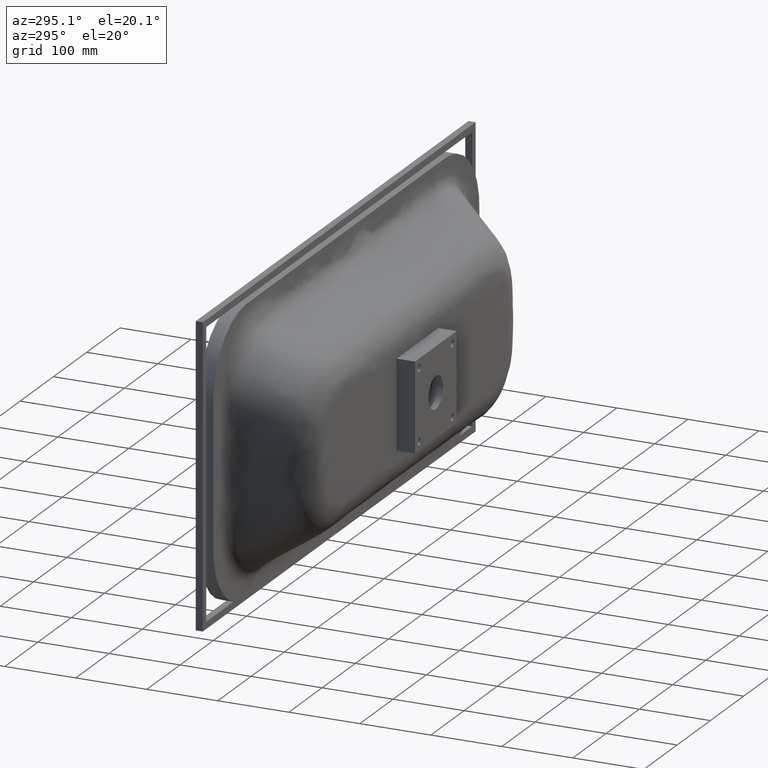
[diagram: clean part render]
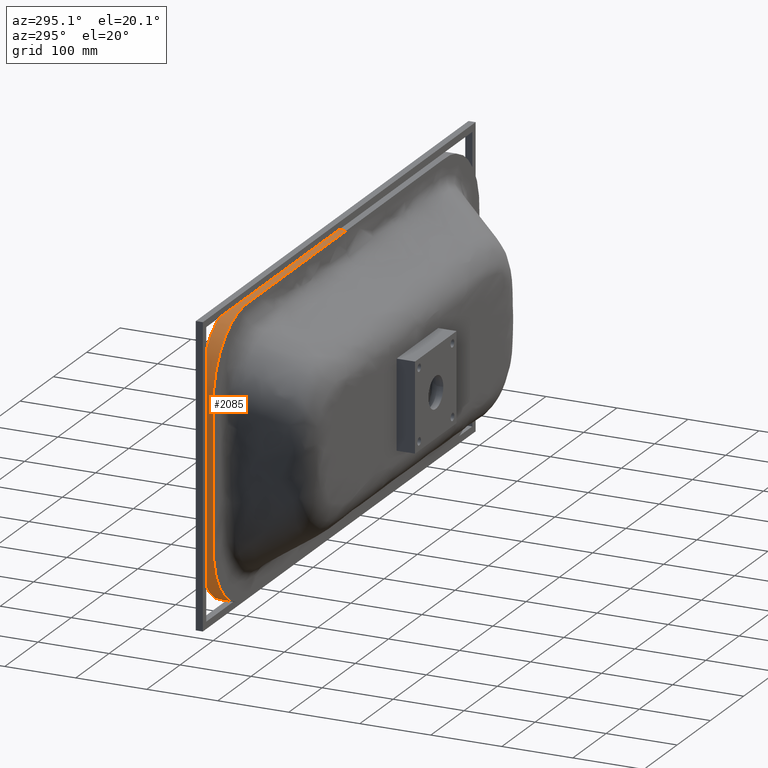
[diagram: same view with one face highlighted and labeled with its STEP entity id]
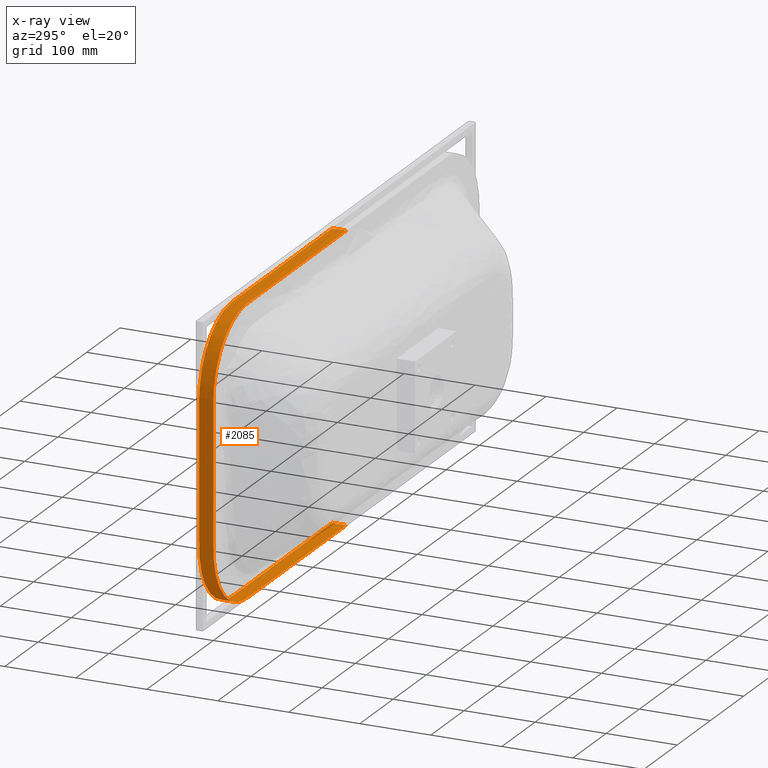
[diagram: x-ray of the same camera — body ghosted, the highlighted face saturated]
A machine part, auxiliary view. The second image highlights one B-rep face of the part: STEP entity #2085.
The next image is the same camera in x-ray: the body ghosted, the highlighted face saturated — about 1% of this face is hidden behind the body in this view.
In plain terms, the highlighted face is a freeform B-spline surface patch.
Its self-contained STEP definition (entity closure, byte-faithful):
#3 = CARTESIAN_POINT ( 'NONE',  ( -6.801850749305060600E-013, 99.99999999999978700, -200.0000000000000000 ) ) ;
#65 = CARTESIAN_POINT ( 'NONE',  ( 371.5384813318390800, 113.3333333333344900, 171.5384813318371500 ) ) ;
#87 = CARTESIAN_POINT ( 'NONE',  ( -308.8402994666680600, 100.0000000000006300, -199.9999999999988900 ) ) ;
#95 = CARTESIAN_POINT ( 'NONE',  ( -350.4493998604106100, 106.6666666666674100, 187.6607435241647000 ) ) ;
#118 = CARTESIAN_POINT ( 'NONE',  ( 400.0000000000002300, 113.3333333333344900, 1.137886081655400100E-011 ) ) ;
#177 = CARTESIAN_POINT ( 'NONE',  ( 387.6607435241642200, 120.0000000000023300, 150.4493998604089000 ) ) ;
#223 = CARTESIAN_POINT ( 'NONE',  ( 134.9999999999993200, 120.0000000000013400, -200.0000000000003400 ) ) ;
#237 = CARTESIAN_POINT ( 'NONE',  ( -6.775829897165408500E-013, 120.0000000000010500, -200.0000000000000000 ) ) ;
#245 = CARTESIAN_POINT ( 'NONE',  ( 134.9999999999990900, 99.99999999999941700, -200.0000000000001100 ) ) ;
#256 = B_SPLINE_SURFACE_WITH_KNOTS ( 'NONE', 3, 3, ( 
 ( #237, #351, #526, #4260, #4912, #6376, #4004, #6871, #7536, #7643, #712, #4247, #4257, #8758, #1219, #8445, #8534, #8565, #1438, #1393, #3915, #7467, #8316, #4160, #1282, #9540, #9523, #1310, #628, #3954, #7111, #177, #639, #8573, #7719, #8082, #8083, #6855, #8906, #9609, #3791, #1589, #1229, #1309, #1253, #223, #3604, #3941, #9253, #4122, #4018 ),
 ( #6830, #4081, #1264, #4043, #4083, #3984, #6385, #10026, #7487, #6795, #7211, #7183, #6491, #10008, #9171, #9147, #9137, #9135, #9117, #1252, #9082, #9008, #1347, #9184, #9248, #9564, #9665, #9707, #9469, #9439, #65, #9786, #4093, #4005, #3769, #118, #9391, #4582, #9748, #9787, #9173, #1567, #8995, #7851, #7129, #8198, #7980, #7325, #6807, #7336, #4584 ),
 ( #9582, #9342, #932, #9279, #1402, #6488, #7703, #8594, #8102, #8115, #6938, #943, #7607, #4599, #8236, #1201, #9328, #7510, #1339, #1220, #857, #95, #649, #9746, #3891, #6683, #671, #6752, #3835, #6514, #6439, #7197, #7097, #7088, #7384, #7585, #8059, #7795, #4095, #7073, #8678, #7010, #9718, #8662, #4183, #1466, #3719, #9691, #7035, #6527, #7819 ),
 ( #8968, #9352, #6994, #7675, #6791, #7072, #9105, #87, #7059, #8693, #7113, #6693, #6524, #8460, #448, #7328, #9811, #7561, #1588, #8996, #1281, #9973, #9278, #6819, #7158, #9442, #3682, #3981, #3930, #8005, #662, #1436, #8784, #7254, #7239, #7571, #7349, #8925, #1133, #581, #1142, #7360, #7362, #6777, #4016, #245, #7172, #6974, #441, #437, #3 ) ),
 .UNSPECIFIED., .F., .T., .F.,
 ( 4, 4 ),
 ( 4, 1, 1, 1, 1, 2, 1, 1, 1, 1, 1, 2, 1, 2, 1, 1, 1, 1, 1, 2, 1, 2, 1, 1, 1, 1, 1, 2, 1, 2, 1, 1, 1, 1, 1, 2, 1, 1, 1, 1, 4 ),
 ( 0.0000000000000000000, 1.000000000000000000 ),
 ( 0.0000000000000000000, 0.006706903432371902300, 0.01341380686474358300, 0.02012071029711548500, 0.02682761372948738700, 0.1341380686474368300, 0.1459962756146732100, 0.1578544825819094800, 0.1697126895491458700, 0.1815708965163822500, 0.1934291034836185300, 0.2052873104508549100, 0.2499999999997610200, 0.2947126895491456500, 0.3065708965163819200, 0.3184291034836181900, 0.3302873104508545800, 0.3421455174180908500, 0.3540037243853271200, 0.3658619313525634000, 0.5000000000000000000, 0.6341380686474370500, 0.6459962756146733200, 0.6578544825819095900, 0.6697126895491458700, 0.6815708965163821400, 0.6934291034836184100, 0.7052873104508546900, 0.7499999999999830100, 0.7947126895491455300, 0.8065708965163818100, 0.8184291034836180800, 0.8302873104508543500, 0.8421455174180906300, 0.8540037243853270100, 0.8658619313525632900, 0.9731723862705126100, 0.9798792897028845200, 0.9865861931352563100, 0.9932930965676282100, 1.000000000000000000 ),
 .UNSPECIFIED. ) ;
#269 = CARTESIAN_POINT ( 'NONE',  ( 2.210455197844870900E-013, 100.0000000000000000, 200.0000000000000300 ) ) ;
#351 = CARTESIAN_POINT ( 'NONE',  ( -5.000000000000732700, 120.0000000000010400, -199.9999999999999700 ) ) ;
#408 = CARTESIAN_POINT ( 'NONE',  ( -6.938893903907228400E-013, 120.0000000000012900, 200.0000000000000000 ) ) ;
#437 = CARTESIAN_POINT ( 'NONE',  ( 4.999999999999281500, 99.99999999999977300, -200.0000000000000000 ) ) ;
#441 = CARTESIAN_POINT ( 'NONE',  ( 14.99999999999927900, 99.99999999999971600, -199.9999999999999400 ) ) ;
#448 = CARTESIAN_POINT ( 'NONE',  ( -400.0000000000009100, 100.0000000000009500, -66.66666666684379500 ) ) ;
#526 = CARTESIAN_POINT ( 'NONE',  ( -15.00000000000067900, 120.0000000000009900, -199.9999999999999400 ) ) ;
#581 = CARTESIAN_POINT ( 'NONE',  ( 387.6607435241632500, 99.99999999999876400, -150.4493998604117200 ) ) ;
#628 = CARTESIAN_POINT ( 'NONE',  ( 326.2865120157429100, 120.0000000000021500, 197.6520662592141700 ) ) ;
#639 = CARTESIAN_POINT ( 'NONE',  ( 397.6520662592157600, 120.0000000000023400, 126.2865120157406300 ) ) ;
#649 = CARTESIAN_POINT ( 'NONE',  ( -326.2865120157422900, 106.6666666666673400, 197.6520662592164400 ) ) ;
#662 = CARTESIAN_POINT ( 'NONE',  ( 371.5384813318390200, 99.99999999999894800, 171.5384813318371800 ) ) ;
#671 = CARTESIAN_POINT ( 'NONE',  ( 200.0000000000001700, 106.6666666666668600, 199.9999999999996600 ) ) ;
#712 = CARTESIAN_POINT ( 'NONE',  ( -371.5384813318397100, 120.0000000000000000, -171.5384813318372900 ) ) ;
#857 = CARTESIAN_POINT ( 'NONE',  ( -371.5384813318385100, 106.6666666666673700, 171.5384813318397300 ) ) ;
#932 = CARTESIAN_POINT ( 'NONE',  ( -15.00000000000066800, 106.6666666666669000, -200.0000000000000300 ) ) ;
#943 = CARTESIAN_POINT ( 'NONE',  ( -387.6607435241649000, 106.6666666666672700, -150.4493998604091300 ) ) ;
#1133 = CARTESIAN_POINT ( 'NONE',  ( 397.6520662592150800, 99.99999999999867800, -126.2865120157435100 ) ) ;
#1142 = CARTESIAN_POINT ( 'NONE',  ( 371.5384813318378300, 99.99999999999873500, -171.5384813318397900 ) ) ;
#1201 = CARTESIAN_POINT ( 'NONE',  ( -400.0000000000005700, 106.6666666666673500, -1.772693103418987400E-010 ) ) ;
#1219 = CARTESIAN_POINT ( 'NONE',  ( -400.0000000000008000, 119.9999999999999600, -66.66666666684393800 ) ) ;
#1220 = CARTESIAN_POINT ( 'NONE',  ( -387.6607435241640500, 106.6666666666674200, 150.4493998604116600 ) ) ;
#1229 = CARTESIAN_POINT ( 'NONE',  ( 326.2865120157414900, 120.0000000000018900, -197.6520662592164700 ) ) ;
#1252 = CARTESIAN_POINT ( 'NONE',  ( -387.6607435241640500, 113.3333333333338400, 150.4493998604116600 ) ) ;
#1253 = CARTESIAN_POINT ( 'NONE',  ( 219.9999999999991500, 120.0000000000017800, -200.0000000000004300 ) ) ;
#1264 = CARTESIAN_POINT ( 'NONE',  ( -15.00000000000067300, 113.3333333333339400, -199.9999999999999700 ) ) ;
#1281 = CARTESIAN_POINT ( 'NONE',  ( -371.5384813318385700, 100.0000000000009800, 171.5384813318397100 ) ) ;
#1282 = CARTESIAN_POINT ( 'NONE',  ( -200.0000000000005400, 120.0000000000009900, 200.0000000000007700 ) ) ;
#1309 = CARTESIAN_POINT ( 'NONE',  ( 308.8402994666660100, 120.0000000000018800, -200.0000000000009900 ) ) ;
#1310 = CARTESIAN_POINT ( 'NONE',  ( 308.8402994666673700, 120.0000000000021000, 199.9999999999987800 ) ) ;
#1339 = CARTESIAN_POINT ( 'NONE',  ( -397.6520662592157600, 106.6666666666674000, 126.2865120157434000 ) ) ;
#1347 = CARTESIAN_POINT ( 'NONE',  ( -326.2865120157422900, 113.3333333333339300, 197.6520662592164700 ) ) ;
#1393 = CARTESIAN_POINT ( 'NONE',  ( -387.6607435241640500, 120.0000000000001700, 150.4493998604116600 ) ) ;
#1394 = VERTEX_POINT ( 'NONE', #408 ) ;
#1402 = CARTESIAN_POINT ( 'NONE',  ( -45.00000000000070300, 106.6666666666669100, -200.0000000000000300 ) ) ;
#1436 = CARTESIAN_POINT ( 'NONE',  ( 387.6607435241641600, 99.99999999999889200, 150.4493998604089900 ) ) ;
#1438 = CARTESIAN_POINT ( 'NONE',  ( -397.6520662592155900, 120.0000000000001100, 126.2865120157434000 ) ) ;
#1466 = CARTESIAN_POINT ( 'NONE',  ( 134.9999999999991800, 106.6666666666667400, -200.0000000000002000 ) ) ;
#1567 = CARTESIAN_POINT ( 'NONE',  ( 350.4493998604098700, 113.3333333333343400, -187.6607435241647900 ) ) ;
#1588 = CARTESIAN_POINT ( 'NONE',  ( -397.6520662592158100, 100.0000000000010700, 126.2865120157434000 ) ) ;
#1589 = CARTESIAN_POINT ( 'NONE',  ( 350.4493998604099300, 120.0000000000020500, -187.6607435241647600 ) ) ;
#1780 = ORIENTED_EDGE ( 'NONE', *, *, #2818, .F. ) ;
#1786 = VERTEX_POINT ( 'NONE', #269 ) ;
#2085 = ADVANCED_FACE ( 'NONE', ( #7930 ), #256, .T. ) ;
#2818 = EDGE_CURVE ( 'NONE', #1394, #1786, #6375, .T. ) ;
#2971 = EDGE_CURVE ( 'NONE', #4220, #1786, #3893, .T. ) ;
#3135 = B_SPLINE_CURVE_WITH_KNOTS ( 'NONE', 3,
 ( #8260, #3889, #4710, #4120, #3923, #8453, #8394, #8493, #8637, #8638, #8611, #8622, #8603, #8587, #9592, #9594, #9603, #9805, #9796, #5112, #8934, #9295, #9577, #9570, #9821, #9819, #10133 ),
 .UNSPECIFIED., .F., .F.,
 ( 4, 1, 1, 1, 1, 2, 1, 1, 1, 1, 1, 2, 1, 2, 1, 1, 1, 1, 1, 2, 4 ),
 ( 0.0000000000000000000, 0.006706903432371902300, 0.01341380686474358300, 0.02012071029711548500, 0.02682761372948738700, 0.1341380686474368300, 0.1459962756146732100, 0.1578544825819094800, 0.1697126895491458700, 0.1815708965163822500, 0.1934291034836185300, 0.2052873104508549100, 0.2499999999997610200, 0.2947126895491456500, 0.3065708965163819200, 0.3184291034836181900, 0.3302873104508545800, 0.3421455174180908500, 0.3540037243853271200, 0.3658619313525634000, 0.5000000000000000000 ),
 .UNSPECIFIED. ) ;
#3604 = CARTESIAN_POINT ( 'NONE',  ( 44.99999999999938200, 120.0000000000011200, -200.0000000000001100 ) ) ;
#3630 = EDGE_CURVE ( 'NONE', #3744, #1394, #3135, .T. ) ;
#3682 = CARTESIAN_POINT ( 'NONE',  ( 200.0000000000003100, 99.99999999999934600, 199.9999999999996600 ) ) ;
#3719 = CARTESIAN_POINT ( 'NONE',  ( 44.99999999999931800, 106.6666666666668300, -200.0000000000000000 ) ) ;
#3744 = VERTEX_POINT ( 'NONE', #9604 ) ;
#3769 = CARTESIAN_POINT ( 'NONE',  ( 400.0000000000002800, 113.3333333333345400, 66.66666666667795500 ) ) ;
#3787 = CARTESIAN_POINT ( 'NONE',  ( 2.210455197844870900E-013, 100.0000000000000000, 200.0000000000000300 ) ) ;
#3791 = CARTESIAN_POINT ( 'NONE',  ( 371.5384813318378300, 120.0000000000020500, -171.5384813318397300 ) ) ;
#3835 = CARTESIAN_POINT ( 'NONE',  ( 326.2865120157428600, 106.6666666666667700, 197.6520662592142200 ) ) ;
#3889 = CARTESIAN_POINT ( 'NONE',  ( -5.000000000000732700, 120.0000000000010400, -199.9999999999999700 ) ) ;
#3891 = CARTESIAN_POINT ( 'NONE',  ( -200.0000000000005400, 106.6666666666674400, 200.0000000000006800 ) ) ;
#3893 = B_SPLINE_CURVE_WITH_KNOTS ( 'NONE', 3,
 ( #7152, #7122, #7166, #7174, #7206, #7208, #7217, #7232, #7234, #7357, #7364, #7394, #7400, #7415, #7429, #7431, #7448, #7461, #7462, #7478, #7494, #7495, #7513, #7531, #7532, #7570, #7581 ),
 .UNSPECIFIED., .F., .F.,
 ( 4, 1, 1, 1, 1, 2, 1, 1, 1, 1, 1, 2, 1, 2, 1, 1, 1, 1, 1, 2, 4 ),
 ( 0.0000000000000000000, 0.006706903432371904900, 0.01341380686474358800, 0.02012071029711549500, 0.02682761372948739800, 0.1341380686474368800, 0.1459962756146732700, 0.1578544825819095700, 0.1697126895491459500, 0.1815708965163823400, 0.1934291034836186100, 0.2052873104508549900, 0.2499999999997611400, 0.2947126895491457600, 0.3065708965163820300, 0.3184291034836183600, 0.3302873104508547400, 0.3421455174180910200, 0.3540037243853272900, 0.3658619313525635600, 0.5000000000000002200 ),
 .UNSPECIFIED. ) ;
#3915 = CARTESIAN_POINT ( 'NONE',  ( -371.5384813318384500, 120.0000000000002000, 171.5384813318397300 ) ) ;
#3923 = CARTESIAN_POINT ( 'NONE',  ( -45.00000000000069600, 120.0000000000009100, -199.9999999999998600 ) ) ;
#3930 = CARTESIAN_POINT ( 'NONE',  ( 326.2865120157428600, 99.99999999999906200, 197.6520662592142500 ) ) ;
#3941 = CARTESIAN_POINT ( 'NONE',  ( 29.99999999999930400, 120.0000000000010900, -200.0000000000001100 ) ) ;
#3954 = CARTESIAN_POINT ( 'NONE',  ( 350.4493998604112300, 120.0000000000022600, 187.6607435241623400 ) ) ;
#3981 = CARTESIAN_POINT ( 'NONE',  ( 308.8402994666673200, 99.99999999999914700, 199.9999999999987800 ) ) ;
#3984 = CARTESIAN_POINT ( 'NONE',  ( -135.0000000000011100, 113.3333333333338300, -199.9999999999998000 ) ) ;
#4004 = CARTESIAN_POINT ( 'NONE',  ( -220.0000000000015300, 120.0000000000004700, -199.9999999999996300 ) ) ;
#4005 = CARTESIAN_POINT ( 'NONE',  ( 400.0000000000003400, 113.3333333333344800, 108.8402994666651300 ) ) ;
#4016 = CARTESIAN_POINT ( 'NONE',  ( 219.9999999999989500, 99.99999999999926100, -200.0000000000008500 ) ) ;
#4018 = CARTESIAN_POINT ( 'NONE',  ( -6.775829897165408500E-013, 120.0000000000010500, -200.0000000000000000 ) ) ;
#4043 = CARTESIAN_POINT ( 'NONE',  ( -30.00000000000068200, 113.3333333333339300, -199.9999999999999700 ) ) ;
#4081 = CARTESIAN_POINT ( 'NONE',  ( -5.000000000000730100, 113.3333333333339500, -200.0000000000000000 ) ) ;
#4083 = CARTESIAN_POINT ( 'NONE',  ( -45.00000000000069600, 113.3333333333339100, -199.9999999999999100 ) ) ;
#4093 = CARTESIAN_POINT ( 'NONE',  ( 397.6520662592157600, 113.3333333333345100, 126.2865120157406300 ) ) ;
#4095 = CARTESIAN_POINT ( 'NONE',  ( 397.6520662592150800, 106.6666666666665000, -126.2865120157435100 ) ) ;
#4120 = CARTESIAN_POINT ( 'NONE',  ( -30.00000000000068600, 120.0000000000009500, -199.9999999999998900 ) ) ;
#4122 = CARTESIAN_POINT ( 'NONE',  ( 4.999999999999293900, 120.0000000000010700, -200.0000000000000300 ) ) ;
#4160 = CARTESIAN_POINT ( 'NONE',  ( -308.8402994666668100, 120.0000000000004000, 200.0000000000009400 ) ) ;
#4183 = CARTESIAN_POINT ( 'NONE',  ( 219.9999999999990100, 106.6666666666667900, -200.0000000000007100 ) ) ;
#4220 = VERTEX_POINT ( 'NONE', #9271 ) ;
#4247 = CARTESIAN_POINT ( 'NONE',  ( -387.6607435241649000, 120.0000000000000300, -150.4493998604091000 ) ) ;
#4257 = CARTESIAN_POINT ( 'NONE',  ( -397.6520662592165500, 119.9999999999999400, -126.2865120157407800 ) ) ;
#4260 = CARTESIAN_POINT ( 'NONE',  ( -30.00000000000068600, 120.0000000000009500, -199.9999999999998900 ) ) ;
#4582 = CARTESIAN_POINT ( 'NONE',  ( 399.9999999999996600, 113.3333333333343900, -108.8402994666680100 ) ) ;
#4584 = CARTESIAN_POINT ( 'NONE',  ( -6.784503514545292500E-013, 113.3333333333339500, -200.0000000000000000 ) ) ;
#4599 = CARTESIAN_POINT ( 'NONE',  ( -400.0000000000010800, 106.6666666666672500, -108.8402994666652600 ) ) ;
#4710 = CARTESIAN_POINT ( 'NONE',  ( -15.00000000000067900, 120.0000000000009900, -199.9999999999999400 ) ) ;
#4811 = ORIENTED_EDGE ( 'NONE', *, *, #9385, .T. ) ;
#4912 = CARTESIAN_POINT ( 'NONE',  ( -45.00000000000069600, 120.0000000000009100, -199.9999999999998600 ) ) ;
#5112 = CARTESIAN_POINT ( 'NONE',  ( -387.6607435241640500, 120.0000000000001700, 150.4493998604116600 ) ) ;
#5511 = CARTESIAN_POINT ( 'NONE',  ( -4.371503159461553900E-013, 106.6666666666671100, 200.0000000000000600 ) ) ;
#6218 = CARTESIAN_POINT ( 'NONE',  ( -6.938893903907228400E-013, 120.0000000000012900, 200.0000000000000000 ) ) ;
#6296 = CARTESIAN_POINT ( 'NONE',  ( -5.759281940242999600E-013, 113.3333333333342200, 200.0000000000000600 ) ) ;
#6375 = B_SPLINE_CURVE_WITH_KNOTS ( 'NONE', 3,
 ( #6218, #6296, #5511, #3787 ),
 .UNSPECIFIED., .F., .F.,
 ( 4, 4 ),
 ( 0.0000000000000000000, 1.000000000000000000 ),
 .UNSPECIFIED. ) ;
#6376 = CARTESIAN_POINT ( 'NONE',  ( -135.0000000000010500, 120.0000000000006700, -199.9999999999996300 ) ) ;
#6385 = CARTESIAN_POINT ( 'NONE',  ( -220.0000000000018200, 113.3333333333337700, -199.9999999999994900 ) ) ;
#6439 = CARTESIAN_POINT ( 'NONE',  ( 371.5384813318390800, 106.6666666666667300, 171.5384813318371500 ) ) ;
#6488 = CARTESIAN_POINT ( 'NONE',  ( -135.0000000000011900, 106.6666666666670000, -199.9999999999999400 ) ) ;
#6491 = CARTESIAN_POINT ( 'NONE',  ( -397.6520662592165500, 113.3333333333336100, -126.2865120157407800 ) ) ;
#6514 = CARTESIAN_POINT ( 'NONE',  ( 350.4493998604112300, 106.6666666666667900, 187.6607435241623100 ) ) ;
#6524 = CARTESIAN_POINT ( 'NONE',  ( -397.6520662592165000, 100.0000000000009200, -126.2865120157407500 ) ) ;
#6527 = CARTESIAN_POINT ( 'NONE',  ( 4.999999999999285000, 106.6666666666668700, -200.0000000000000300 ) ) ;
#6683 = CARTESIAN_POINT ( 'NONE',  ( 5.088522196199331000E-015, 106.6666666666670600, 199.9999999999998900 ) ) ;
#6693 = CARTESIAN_POINT ( 'NONE',  ( -387.6607435241649000, 100.0000000000009400, -150.4493998604091300 ) ) ;
#6752 = CARTESIAN_POINT ( 'NONE',  ( 308.8402994666673200, 106.6666666666668100, 199.9999999999987800 ) ) ;
#6777 = CARTESIAN_POINT ( 'NONE',  ( 308.8402994666659000, 99.99999999999890600, -200.0000000000009900 ) ) ;
#6791 = CARTESIAN_POINT ( 'NONE',  ( -45.00000000000070300, 99.99999999999988600, -200.0000000000001100 ) ) ;
#6795 = CARTESIAN_POINT ( 'NONE',  ( -350.4493998604119700, 113.3333333333336700, -187.6607435241624000 ) ) ;
#6807 = CARTESIAN_POINT ( 'NONE',  ( 14.99999999999930500, 113.3333333333339500, -200.0000000000000300 ) ) ;
#6819 = CARTESIAN_POINT ( 'NONE',  ( -308.8402994666668100, 100.0000000000008500, 200.0000000000009100 ) ) ;
#6830 = CARTESIAN_POINT ( 'NONE',  ( -6.784503514545292500E-013, 113.3333333333339500, -200.0000000000000000 ) ) ;
#6855 = CARTESIAN_POINT ( 'NONE',  ( 399.9999999999996600, 120.0000000000022000, -108.8402994666680100 ) ) ;
#6871 = CARTESIAN_POINT ( 'NONE',  ( -308.8402994666680000, 120.0000000000001700, -199.9999999999988900 ) ) ;
#6938 = CARTESIAN_POINT ( 'NONE',  ( -371.5384813318397600, 106.6666666666671700, -171.5384813318372300 ) ) ;
#6974 = CARTESIAN_POINT ( 'NONE',  ( 29.99999999999923600, 99.99999999999968700, -199.9999999999999100 ) ) ;
#6994 = CARTESIAN_POINT ( 'NONE',  ( -15.00000000000066300, 99.99999999999981500, -200.0000000000000600 ) ) ;
#7010 = CARTESIAN_POINT ( 'NONE',  ( 350.4493998604098100, 106.6666666666665700, -187.6607435241648100 ) ) ;
#7035 = CARTESIAN_POINT ( 'NONE',  ( 14.99999999999929100, 106.6666666666668400, -199.9999999999999700 ) ) ;
#7059 = CARTESIAN_POINT ( 'NONE',  ( -326.2865120157435400, 100.0000000000006400, -197.6520662592143400 ) ) ;
#7072 = CARTESIAN_POINT ( 'NONE',  ( -135.0000000000012500, 100.0000000000001300, -200.0000000000001100 ) ) ;
#7073 = CARTESIAN_POINT ( 'NONE',  ( 387.6607435241632500, 106.6666666666665600, -150.4493998604117200 ) ) ;
#7088 = CARTESIAN_POINT ( 'NONE',  ( 400.0000000000003400, 106.6666666666666100, 108.8402994666651300 ) ) ;
#7097 = CARTESIAN_POINT ( 'NONE',  ( 397.6520662592157600, 106.6666666666666600, 126.2865120157406000 ) ) ;
#7111 = CARTESIAN_POINT ( 'NONE',  ( 371.5384813318391400, 120.0000000000022700, 171.5384813318371200 ) ) ;
#7113 = CARTESIAN_POINT ( 'NONE',  ( -371.5384813318398200, 100.0000000000007800, -171.5384813318372000 ) ) ;
#7122 = CARTESIAN_POINT ( 'NONE',  ( -5.000000000000725600, 99.99999999999980100, -200.0000000000000000 ) ) ;
#7129 = CARTESIAN_POINT ( 'NONE',  ( 219.9999999999990900, 113.3333333333343100, -200.0000000000005700 ) ) ;
#7152 = CARTESIAN_POINT ( 'NONE',  ( -6.801850749305060600E-013, 99.99999999999978700, -200.0000000000000000 ) ) ;
#7158 = CARTESIAN_POINT ( 'NONE',  ( -200.0000000000005400, 100.0000000000006700, 200.0000000000006500 ) ) ;
#7166 = CARTESIAN_POINT ( 'NONE',  ( -15.00000000000066300, 99.99999999999981500, -200.0000000000000600 ) ) ;
#7172 = CARTESIAN_POINT ( 'NONE',  ( 44.99999999999928200, 99.99999999999965900, -199.9999999999999400 ) ) ;
#7174 = CARTESIAN_POINT ( 'NONE',  ( -30.00000000000067500, 99.99999999999985800, -200.0000000000001100 ) ) ;
#7183 = CARTESIAN_POINT ( 'NONE',  ( -387.6607435241649000, 113.3333333333336700, -150.4493998604091300 ) ) ;
#7197 = CARTESIAN_POINT ( 'NONE',  ( 387.6607435241641600, 106.6666666666667000, 150.4493998604089600 ) ) ;
#7206 = CARTESIAN_POINT ( 'NONE',  ( -45.00000000000070300, 99.99999999999988600, -200.0000000000001100 ) ) ;
#7208 = CARTESIAN_POINT ( 'NONE',  ( -135.0000000000012500, 100.0000000000001300, -200.0000000000001100 ) ) ;
#7211 = CARTESIAN_POINT ( 'NONE',  ( -371.5384813318397600, 113.3333333333336000, -171.5384813318372600 ) ) ;
#7217 = CARTESIAN_POINT ( 'NONE',  ( -220.0000000000023900, 100.0000000000003600, -199.9999999999992000 ) ) ;
#7232 = CARTESIAN_POINT ( 'NONE',  ( -308.8402994666680600, 100.0000000000006300, -199.9999999999988900 ) ) ;
#7234 = CARTESIAN_POINT ( 'NONE',  ( -326.2865120157435400, 100.0000000000006400, -197.6520662592143400 ) ) ;
#7239 = CARTESIAN_POINT ( 'NONE',  ( 400.0000000000000000, 99.99999999999880600, 66.66666666667795500 ) ) ;
#7254 = CARTESIAN_POINT ( 'NONE',  ( 400.0000000000002800, 99.99999999999882000, 108.8402994666651400 ) ) ;
#7325 = CARTESIAN_POINT ( 'NONE',  ( 29.99999999999928200, 113.3333333333339700, -200.0000000000000600 ) ) ;
#7328 = CARTESIAN_POINT ( 'NONE',  ( -400.0000000000006800, 100.0000000000010700, -1.772068602967635800E-010 ) ) ;
#7336 = CARTESIAN_POINT ( 'NONE',  ( 4.999999999999289500, 113.3333333333339500, -200.0000000000000300 ) ) ;
#7349 = CARTESIAN_POINT ( 'NONE',  ( 399.9999999999998900, 99.99999999999874900, -66.66666666665513200 ) ) ;
#7357 = CARTESIAN_POINT ( 'NONE',  ( -350.4493998604119700, 100.0000000000008000, -187.6607435241624000 ) ) ;
#7360 = CARTESIAN_POINT ( 'NONE',  ( 350.4493998604097600, 99.99999999999883500, -187.6607435241648400 ) ) ;
#7362 = CARTESIAN_POINT ( 'NONE',  ( 326.2865120157413800, 99.99999999999886300, -197.6520662592164700 ) ) ;
#7364 = CARTESIAN_POINT ( 'NONE',  ( -371.5384813318398200, 100.0000000000007800, -171.5384813318372000 ) ) ;
#7384 = CARTESIAN_POINT ( 'NONE',  ( 400.0000000000001700, 106.6666666666666400, 66.66666666667795500 ) ) ;
#7394 = CARTESIAN_POINT ( 'NONE',  ( -387.6607435241649000, 100.0000000000009400, -150.4493998604091300 ) ) ;
#7400 = CARTESIAN_POINT ( 'NONE',  ( -397.6520662592165000, 100.0000000000009200, -126.2865120157407500 ) ) ;
#7415 = CARTESIAN_POINT ( 'NONE',  ( -400.0000000000010800, 100.0000000000009400, -108.8402994666652600 ) ) ;
#7429 = CARTESIAN_POINT ( 'NONE',  ( -400.0000000000009100, 100.0000000000009500, -66.66666666684379500 ) ) ;
#7431 = CARTESIAN_POINT ( 'NONE',  ( -400.0000000000006800, 100.0000000000010700, -1.772068602967635800E-010 ) ) ;
#7448 = CARTESIAN_POINT ( 'NONE',  ( -400.0000000000005700, 100.0000000000011200, 66.66666666648957600 ) ) ;
#7461 = CARTESIAN_POINT ( 'NONE',  ( -400.0000000000003400, 100.0000000000010500, 108.8402994666678900 ) ) ;
#7462 = CARTESIAN_POINT ( 'NONE',  ( -397.6520662592158100, 100.0000000000010700, 126.2865120157434000 ) ) ;
#7467 = CARTESIAN_POINT ( 'NONE',  ( -350.4493998604106100, 120.0000000000002800, 187.6607435241647600 ) ) ;
#7478 = CARTESIAN_POINT ( 'NONE',  ( -387.6607435241640500, 100.0000000000010800, 150.4493998604116600 ) ) ;
#7487 = CARTESIAN_POINT ( 'NONE',  ( -326.2865120157435400, 113.3333333333336300, -197.6520662592143400 ) ) ;
#7494 = CARTESIAN_POINT ( 'NONE',  ( -371.5384813318385700, 100.0000000000009800, 171.5384813318397100 ) ) ;
#7495 = CARTESIAN_POINT ( 'NONE',  ( -350.4493998604106100, 100.0000000000010200, 187.6607435241646700 ) ) ;
#7510 = CARTESIAN_POINT ( 'NONE',  ( -400.0000000000003400, 106.6666666666673800, 108.8402994666678700 ) ) ;
#7513 = CARTESIAN_POINT ( 'NONE',  ( -326.2865120157422900, 100.0000000000008800, 197.6520662592164100 ) ) ;
#7531 = CARTESIAN_POINT ( 'NONE',  ( -308.8402994666668100, 100.0000000000008500, 200.0000000000009100 ) ) ;
#7532 = CARTESIAN_POINT ( 'NONE',  ( -200.0000000000003700, 100.0000000000006700, 200.0000000000006500 ) ) ;
#7536 = CARTESIAN_POINT ( 'NONE',  ( -326.2865120157435400, 120.0000000000001100, -197.6520662592143400 ) ) ;
#7561 = CARTESIAN_POINT ( 'NONE',  ( -400.0000000000003400, 100.0000000000010500, 108.8402994666678900 ) ) ;
#7570 = CARTESIAN_POINT ( 'NONE',  ( -100.0000000000000000, 100.0000000000003400, 200.0000000000002800 ) ) ;
#7571 = CARTESIAN_POINT ( 'NONE',  ( 399.9999999999999400, 99.99999999999880600, 1.148525718974724400E-011 ) ) ;
#7581 = CARTESIAN_POINT ( 'NONE',  ( 2.210455197844870900E-013, 100.0000000000000000, 200.0000000000000300 ) ) ;
#7585 = CARTESIAN_POINT ( 'NONE',  ( 400.0000000000001100, 106.6666666666666400, 1.143205900315062200E-011 ) ) ;
#7607 = CARTESIAN_POINT ( 'NONE',  ( -397.6520662592165000, 106.6666666666672300, -126.2865120157407500 ) ) ;
#7643 = CARTESIAN_POINT ( 'NONE',  ( -350.4493998604119700, 120.0000000000001100, -187.6607435241624000 ) ) ;
#7675 = CARTESIAN_POINT ( 'NONE',  ( -30.00000000000067500, 99.99999999999985800, -200.0000000000001100 ) ) ;
#7703 = CARTESIAN_POINT ( 'NONE',  ( -220.0000000000021000, 106.6666666666670600, -199.9999999999993500 ) ) ;
#7719 = CARTESIAN_POINT ( 'NONE',  ( 400.0000000000004500, 120.0000000000023900, 66.66666666667794100 ) ) ;
#7795 = CARTESIAN_POINT ( 'NONE',  ( 399.9999999999996000, 106.6666666666665300, -108.8402994666680100 ) ) ;
#7819 = CARTESIAN_POINT ( 'NONE',  ( -6.793177131925176600E-013, 106.6666666666668800, -200.0000000000000000 ) ) ;
#7851 = CARTESIAN_POINT ( 'NONE',  ( 308.8402994666659500, 113.3333333333342700, -200.0000000000009900 ) ) ;
#7930 = FACE_OUTER_BOUND ( 'NONE', #9824, .T. ) ;
#7980 = CARTESIAN_POINT ( 'NONE',  ( 44.99999999999934600, 113.3333333333339800, -200.0000000000000600 ) ) ;
#8005 = CARTESIAN_POINT ( 'NONE',  ( 350.4493998604112300, 99.99999999999903400, 187.6607435241623100 ) ) ;
#8059 = CARTESIAN_POINT ( 'NONE',  ( 399.9999999999999400, 106.6666666666665600, -66.66666666665518900 ) ) ;
#8082 = CARTESIAN_POINT ( 'NONE',  ( 400.0000000000004000, 120.0000000000023300, 1.132566262995737700E-011 ) ) ;
#8083 = CARTESIAN_POINT ( 'NONE',  ( 400.0000000000000000, 120.0000000000022200, -66.66666666665528900 ) ) ;
#8102 = CARTESIAN_POINT ( 'NONE',  ( -326.2865120157435400, 106.6666666666671300, -197.6520662592143400 ) ) ;
#8115 = CARTESIAN_POINT ( 'NONE',  ( -350.4493998604119700, 106.6666666666672100, -187.6607435241624000 ) ) ;
#8198 = CARTESIAN_POINT ( 'NONE',  ( 134.9999999999992300, 113.3333333333340800, -200.0000000000002600 ) ) ;
#8236 = CARTESIAN_POINT ( 'NONE',  ( -400.0000000000008500, 106.6666666666672500, -66.66666666684383800 ) ) ;
#8260 = CARTESIAN_POINT ( 'NONE',  ( -6.775829897165408500E-013, 120.0000000000010500, -200.0000000000000000 ) ) ;
#8316 = CARTESIAN_POINT ( 'NONE',  ( -326.2865120157422900, 120.0000000000003600, 197.6520662592165000 ) ) ;
#8394 = CARTESIAN_POINT ( 'NONE',  ( -220.0000000000015300, 120.0000000000004700, -199.9999999999996300 ) ) ;
#8445 = CARTESIAN_POINT ( 'NONE',  ( -400.0000000000002800, 120.0000000000000000, -1.773942104321690700E-010 ) ) ;
#8453 = CARTESIAN_POINT ( 'NONE',  ( -135.0000000000010500, 120.0000000000006700, -199.9999999999996300 ) ) ;
#8460 = CARTESIAN_POINT ( 'NONE',  ( -400.0000000000010800, 100.0000000000009400, -108.8402994666652600 ) ) ;
#8462 = ORIENTED_EDGE ( 'NONE', *, *, #3630, .F. ) ;
#8493 = CARTESIAN_POINT ( 'NONE',  ( -308.8402994666680000, 120.0000000000001700, -199.9999999999988900 ) ) ;
#8534 = CARTESIAN_POINT ( 'NONE',  ( -400.0000000000001100, 120.0000000000000900, 66.66666666648949000 ) ) ;
#8565 = CARTESIAN_POINT ( 'NONE',  ( -400.0000000000002800, 120.0000000000000900, 108.8402994666678900 ) ) ;
#8573 = CARTESIAN_POINT ( 'NONE',  ( 400.0000000000004000, 120.0000000000023000, 108.8402994666651300 ) ) ;
#8587 = CARTESIAN_POINT ( 'NONE',  ( -400.0000000000010200, 119.9999999999999900, -108.8402994666652700 ) ) ;
#8594 = CARTESIAN_POINT ( 'NONE',  ( -308.8402994666680600, 106.6666666666671400, -199.9999999999988900 ) ) ;
#8603 = CARTESIAN_POINT ( 'NONE',  ( -397.6520662592165500, 119.9999999999999400, -126.2865120157407800 ) ) ;
#8611 = CARTESIAN_POINT ( 'NONE',  ( -371.5384813318397100, 120.0000000000000000, -171.5384813318372900 ) ) ;
#8622 = CARTESIAN_POINT ( 'NONE',  ( -387.6607435241649000, 120.0000000000000300, -150.4493998604091300 ) ) ;
#8637 = CARTESIAN_POINT ( 'NONE',  ( -326.2865120157435400, 120.0000000000001100, -197.6520662592143400 ) ) ;
#8638 = CARTESIAN_POINT ( 'NONE',  ( -350.4493998604119700, 120.0000000000001100, -187.6607435241624300 ) ) ;
#8662 = CARTESIAN_POINT ( 'NONE',  ( 308.8402994666659500, 106.6666666666665900, -200.0000000000009900 ) ) ;
#8678 = CARTESIAN_POINT ( 'NONE',  ( 371.5384813318378300, 106.6666666666665000, -171.5384813318397900 ) ) ;
#8693 = CARTESIAN_POINT ( 'NONE',  ( -350.4493998604119700, 100.0000000000008000, -187.6607435241624000 ) ) ;
#8758 = CARTESIAN_POINT ( 'NONE',  ( -400.0000000000010200, 119.9999999999999900, -108.8402994666652600 ) ) ;
#8784 = CARTESIAN_POINT ( 'NONE',  ( 397.6520662592157600, 99.99999999999884900, 126.2865120157406000 ) ) ;
#8862 = CARTESIAN_POINT ( 'NONE',  ( -6.801850749305060600E-013, 99.99999999999978700, -200.0000000000000000 ) ) ;
#8893 = CARTESIAN_POINT ( 'NONE',  ( -6.793177131925176600E-013, 106.6666666666668800, -200.0000000000000000 ) ) ;
#8906 = CARTESIAN_POINT ( 'NONE',  ( 397.6520662592150800, 120.0000000000021700, -126.2865120157435100 ) ) ;
#8925 = CARTESIAN_POINT ( 'NONE',  ( 399.9999999999996000, 99.99999999999872100, -108.8402994666680100 ) ) ;
#8934 = CARTESIAN_POINT ( 'NONE',  ( -371.5384813318384500, 120.0000000000002000, 171.5384813318397300 ) ) ;
#8968 = CARTESIAN_POINT ( 'NONE',  ( -6.801850749305060600E-013, 99.99999999999978700, -200.0000000000000000 ) ) ;
#8995 = CARTESIAN_POINT ( 'NONE',  ( 326.2865120157414400, 113.3333333333342500, -197.6520662592164700 ) ) ;
#8996 = CARTESIAN_POINT ( 'NONE',  ( -387.6607435241640500, 100.0000000000010800, 150.4493998604116600 ) ) ;
#9008 = CARTESIAN_POINT ( 'NONE',  ( -350.4493998604106100, 113.3333333333339300, 187.6607435241647300 ) ) ;
#9080 = CARTESIAN_POINT ( 'NONE',  ( -6.784503514545292500E-013, 113.3333333333339500, -200.0000000000000000 ) ) ;
#9082 = CARTESIAN_POINT ( 'NONE',  ( -371.5384813318385100, 113.3333333333338400, 171.5384813318397300 ) ) ;
#9105 = CARTESIAN_POINT ( 'NONE',  ( -220.0000000000023900, 100.0000000000003600, -199.9999999999992000 ) ) ;
#9117 = CARTESIAN_POINT ( 'NONE',  ( -397.6520662592157000, 113.3333333333338000, 126.2865120157434000 ) ) ;
#9135 = CARTESIAN_POINT ( 'NONE',  ( -400.0000000000002800, 113.3333333333337500, 108.8402994666678900 ) ) ;
#9137 = CARTESIAN_POINT ( 'NONE',  ( -400.0000000000002800, 113.3333333333337800, 66.66666666648951900 ) ) ;
#9140 = CARTESIAN_POINT ( 'NONE',  ( -6.775829897165408500E-013, 120.0000000000010500, -200.0000000000000000 ) ) ;
#9147 = CARTESIAN_POINT ( 'NONE',  ( -400.0000000000004000, 113.3333333333337300, -1.773317603870339600E-010 ) ) ;
#9171 = CARTESIAN_POINT ( 'NONE',  ( -400.0000000000008500, 113.3333333333336400, -66.66666666684389500 ) ) ;
#9173 = CARTESIAN_POINT ( 'NONE',  ( 371.5384813318378300, 113.3333333333342900, -171.5384813318397300 ) ) ;
#9184 = CARTESIAN_POINT ( 'NONE',  ( -308.8402994666668100, 113.3333333333339400, 200.0000000000009400 ) ) ;
#9248 = CARTESIAN_POINT ( 'NONE',  ( -200.0000000000005400, 113.3333333333342400, 200.0000000000007400 ) ) ;
#9253 = CARTESIAN_POINT ( 'NONE',  ( 14.99999999999931800, 120.0000000000010500, -200.0000000000000600 ) ) ;
#9271 = CARTESIAN_POINT ( 'NONE',  ( -6.801850749305060600E-013, 99.99999999999978700, -200.0000000000000000 ) ) ;
#9278 = CARTESIAN_POINT ( 'NONE',  ( -326.2865120157422900, 100.0000000000008800, 197.6520662592164100 ) ) ;
#9279 = CARTESIAN_POINT ( 'NONE',  ( -30.00000000000067900, 106.6666666666669100, -200.0000000000000300 ) ) ;
#9295 = CARTESIAN_POINT ( 'NONE',  ( -350.4493998604106100, 120.0000000000002800, 187.6607435241647600 ) ) ;
#9328 = CARTESIAN_POINT ( 'NONE',  ( -400.0000000000004000, 106.6666666666674400, 66.66666666648954700 ) ) ;
#9342 = CARTESIAN_POINT ( 'NONE',  ( -5.000000000000727400, 106.6666666666669000, -200.0000000000000000 ) ) ;
#9352 = CARTESIAN_POINT ( 'NONE',  ( -5.000000000000725600, 99.99999999999980100, -200.0000000000000000 ) ) ;
#9385 = EDGE_CURVE ( 'NONE', #3744, #4220, #10085, .T. ) ;
#9391 = CARTESIAN_POINT ( 'NONE',  ( 399.9999999999999400, 113.3333333333344100, -66.66666666665524600 ) ) ;
#9439 = CARTESIAN_POINT ( 'NONE',  ( 350.4493998604112300, 113.3333333333345200, 187.6607435241623100 ) ) ;
#9442 = CARTESIAN_POINT ( 'NONE',  ( 2.248201624865939500E-013, 100.0000000000000000, 199.9999999999999100 ) ) ;
#9469 = CARTESIAN_POINT ( 'NONE',  ( 326.2865120157429100, 113.3333333333344700, 197.6520662592141900 ) ) ;
#9523 = CARTESIAN_POINT ( 'NONE',  ( 199.9999999999999100, 120.0000000000018600, 199.9999999999996600 ) ) ;
#9540 = CARTESIAN_POINT ( 'NONE',  ( -4.343747583845929500E-013, 120.0000000000012100, 199.9999999999998900 ) ) ;
#9564 = CARTESIAN_POINT ( 'NONE',  ( -2.146431180941967700E-013, 113.3333333333341500, 199.9999999999998900 ) ) ;
#9570 = CARTESIAN_POINT ( 'NONE',  ( -308.8402994666668100, 120.0000000000004000, 200.0000000000009700 ) ) ;
#9577 = CARTESIAN_POINT ( 'NONE',  ( -326.2865120157422900, 120.0000000000003600, 197.6520662592165000 ) ) ;
#9582 = CARTESIAN_POINT ( 'NONE',  ( -6.793177131925176600E-013, 106.6666666666668800, -200.0000000000000000 ) ) ;
#9592 = CARTESIAN_POINT ( 'NONE',  ( -400.0000000000008000, 119.9999999999999600, -66.66666666684395200 ) ) ;
#9594 = CARTESIAN_POINT ( 'NONE',  ( -400.0000000000002800, 120.0000000000000000, -1.773942104321691800E-010 ) ) ;
#9603 = CARTESIAN_POINT ( 'NONE',  ( -400.0000000000001100, 120.0000000000000900, 66.66666666648949000 ) ) ;
#9604 = CARTESIAN_POINT ( 'NONE',  ( -6.775829897165408500E-013, 120.0000000000010500, -200.0000000000000000 ) ) ;
#9609 = CARTESIAN_POINT ( 'NONE',  ( 387.6607435241632500, 120.0000000000021700, -150.4493998604117500 ) ) ;
#9665 = CARTESIAN_POINT ( 'NONE',  ( 200.0000000000000600, 113.3333333333343500, 199.9999999999996600 ) ) ;
#9691 = CARTESIAN_POINT ( 'NONE',  ( 29.99999999999926100, 106.6666666666668400, -199.9999999999999700 ) ) ;
#9707 = CARTESIAN_POINT ( 'NONE',  ( 308.8402994666673700, 113.3333333333344700, 199.9999999999987800 ) ) ;
#9718 = CARTESIAN_POINT ( 'NONE',  ( 326.2865120157414400, 106.6666666666665400, -197.6520662592164700 ) ) ;
#9746 = CARTESIAN_POINT ( 'NONE',  ( -308.8402994666668100, 106.6666666666673400, 200.0000000000009100 ) ) ;
#9748 = CARTESIAN_POINT ( 'NONE',  ( 397.6520662592150800, 113.3333333333343500, -126.2865120157435100 ) ) ;
#9786 = CARTESIAN_POINT ( 'NONE',  ( 387.6607435241642200, 113.3333333333345200, 150.4493998604089300 ) ) ;
#9787 = CARTESIAN_POINT ( 'NONE',  ( 387.6607435241632500, 113.3333333333343800, -150.4493998604117500 ) ) ;
#9796 = CARTESIAN_POINT ( 'NONE',  ( -397.6520662592155900, 120.0000000000001100, 126.2865120157434000 ) ) ;
#9805 = CARTESIAN_POINT ( 'NONE',  ( -400.0000000000002800, 120.0000000000000900, 108.8402994666679000 ) ) ;
#9811 = CARTESIAN_POINT ( 'NONE',  ( -400.0000000000005700, 100.0000000000011200, 66.66666666648957600 ) ) ;
#9819 = CARTESIAN_POINT ( 'NONE',  ( -100.0000000000006700, 120.0000000000011100, 200.0000000000003400 ) ) ;
#9821 = CARTESIAN_POINT ( 'NONE',  ( -200.0000000000005400, 120.0000000000009900, 200.0000000000007700 ) ) ;
#9824 = EDGE_LOOP ( 'NONE', ( #1780, #8462, #4811, #10107 ) ) ;
#9973 = CARTESIAN_POINT ( 'NONE',  ( -350.4493998604106100, 100.0000000000010200, 187.6607435241646700 ) ) ;
#10008 = CARTESIAN_POINT ( 'NONE',  ( -400.0000000000010200, 113.3333333333336600, -108.8402994666652600 ) ) ;
#10026 = CARTESIAN_POINT ( 'NONE',  ( -308.8402994666680000, 113.3333333333336700, -199.9999999999988900 ) ) ;
#10085 = B_SPLINE_CURVE_WITH_KNOTS ( 'NONE', 3,
 ( #9140, #9080, #8893, #8862 ),
 .UNSPECIFIED., .F., .F.,
 ( 4, 4 ),
 ( 0.0000000000000000000, 1.000000000000000000 ),
 .UNSPECIFIED. ) ;
#10107 = ORIENTED_EDGE ( 'NONE', *, *, #2971, .T. ) ;
#10133 = CARTESIAN_POINT ( 'NONE',  ( -6.938893903907228400E-013, 120.0000000000012900, 200.0000000000000000 ) ) ;